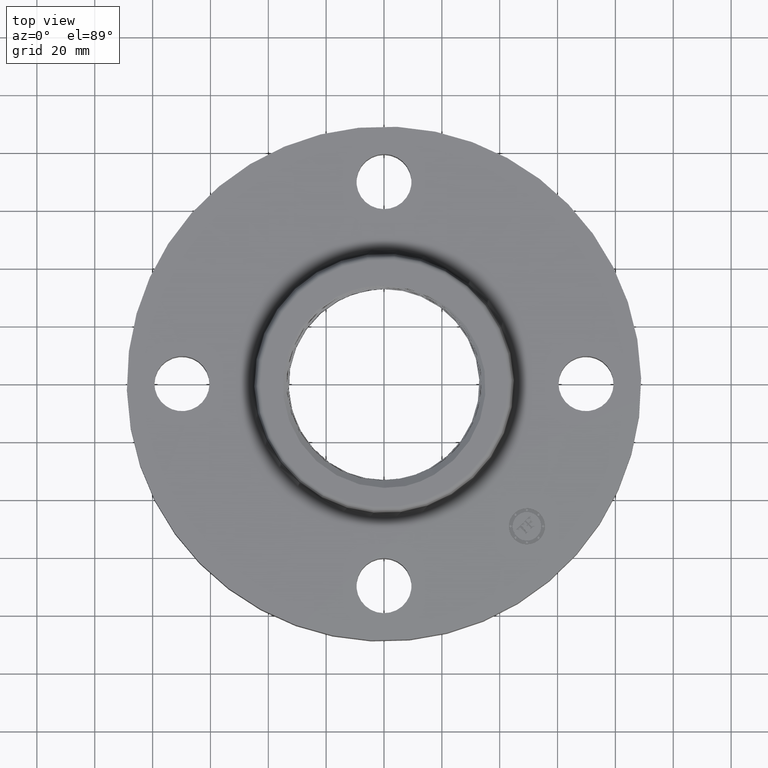
[diagram: clean part render]
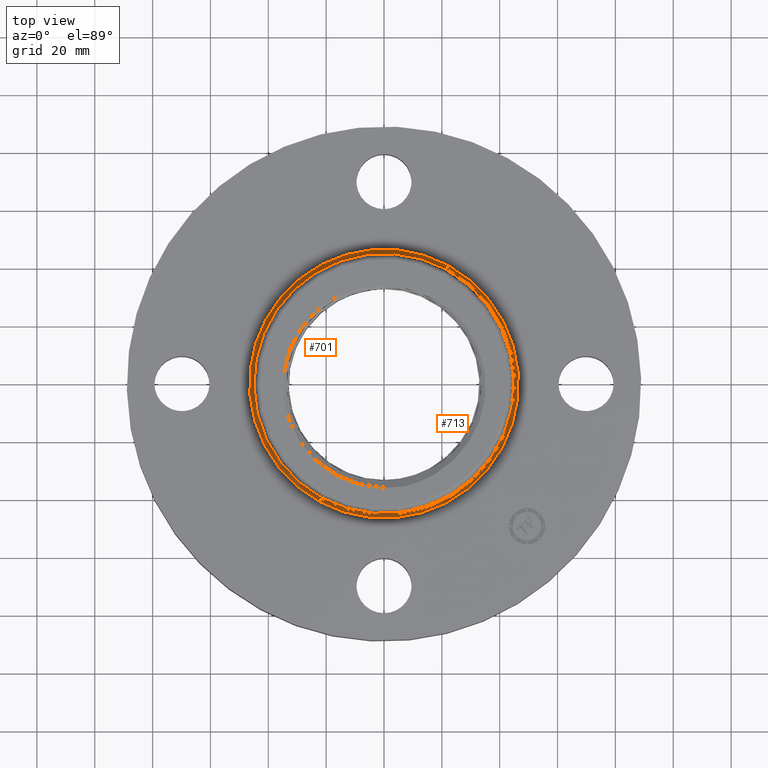
[diagram: same view with one multi-face feature highlighted, each face labeled with its STEP entity id]
A machine part, top view. The highlighted faces form ONE feature: a constant-radius fillet chain: 2 tangent blend faces with common blend radius 1.524 mm. The faces share edges in the B-rep.
Their STEP definitions:
[1] entity #701 (Torus):
#635=AXIS2_PLACEMENT_3D('Circle Axis2P3D',#633,#634,$) ;
#674=AXIS2_PLACEMENT_3D('Torus Axis2P3D',#671,#672,#673) ;
#678=AXIS2_PLACEMENT_3D('Circle Axis2P3D',#676,#677,$) ;
#687=AXIS2_PLACEMENT_3D('Circle Axis2P3D',#685,#686,$) ;
#692=AXIS2_PLACEMENT_3D('Circle Axis2P3D',#690,#691,$) ;
#633=CARTESIAN_POINT('Axis2P3D Location',(0.,0.,0.859581109343)) ;
#637=CARTESIAN_POINT('Vertex',(-0.849186087031,-1.55442470576,0.859581109343)) ;
#639=CARTESIAN_POINT('Vertex',(0.849186087031,1.55442470576,0.859581109343)) ;
#671=CARTESIAN_POINT('Axis2P3D Location',(0.,0.,0.870000000003)) ;
#676=CARTESIAN_POINT('Axis2P3D Location',(0.,0.,0.810000000003)) ;
#680=CARTESIAN_POINT('Vertex',(-0.877514606276,-1.60627971241,0.810000000003)) ;
#682=CARTESIAN_POINT('Vertex',(0.877514606276,1.60627971241,0.810000000003)) ;
#685=CARTESIAN_POINT('Axis2P3D Location',(-0.877514606276,-1.60627971241,0.870000000003)) ;
#690=CARTESIAN_POINT('Axis2P3D Location',(0.877514606276,1.60627971241,0.870000000003)) ;
#634=DIRECTION('Axis2P3D Direction',(0.,0.,-0.0393700787402)) ;
#672=DIRECTION('Axis2P3D Direction',(0.,0.,-0.0393700787402)) ;
#673=DIRECTION('Axis2P3D XDirection',(0.0188750212049,0.0345504945626,0.)) ;
#677=DIRECTION('Axis2P3D Direction',(0.,0.,-0.0393700787402)) ;
#686=DIRECTION('Axis2P3D Direction',(0.0345504945626,-0.0188750212049,0.)) ;
#691=DIRECTION('Axis2P3D Direction',(-0.0345504945626,0.0188750212049,0.)) ;
#696=ORIENTED_EDGE('',*,*,#684,.F.) ;
#697=ORIENTED_EDGE('',*,*,#689,.T.) ;
#698=ORIENTED_EDGE('',*,*,#641,.T.) ;
#699=ORIENTED_EDGE('',*,*,#694,.F.) ;
#701=ADVANCED_FACE('PartBody',(#700),#675,.F.) ;
#636=CIRCLE('generated circle',#635,1.7712575127) ;
#679=CIRCLE('generated circle',#678,1.83034597788) ;
#688=CIRCLE('generated circle',#687,0.0600000000002) ;
#693=CIRCLE('generated circle',#692,0.0600000000002) ;
#675=TOROIDAL_SURFACE('homeo Torus',#674,1.83034597788,0.0600000000002) ;
#641=EDGE_CURVE('',#638,#640,#636,.T.) ;
#684=EDGE_CURVE('',#681,#683,#679,.T.) ;
#689=EDGE_CURVE('',#681,#638,#688,.T.) ;
#694=EDGE_CURVE('',#683,#640,#693,.T.) ;
#695=EDGE_LOOP('',(#696,#697,#698,#699)) ;
#700=FACE_OUTER_BOUND('',#695,.T.) ;
#638=VERTEX_POINT('',#637) ;
#640=VERTEX_POINT('',#639) ;
#681=VERTEX_POINT('',#680) ;
#683=VERTEX_POINT('',#682) ;
[2] entity #713 (Torus):
#661=AXIS2_PLACEMENT_3D('Circle Axis2P3D',#659,#660,$) ;
#674=AXIS2_PLACEMENT_3D('Torus Axis2P3D',#671,#672,#673) ;
#687=AXIS2_PLACEMENT_3D('Circle Axis2P3D',#685,#686,$) ;
#692=AXIS2_PLACEMENT_3D('Circle Axis2P3D',#690,#691,$) ;
#704=AXIS2_PLACEMENT_3D('Circle Axis2P3D',#702,#703,$) ;
#637=CARTESIAN_POINT('Vertex',(-0.849186087031,-1.55442470576,0.859581109343)) ;
#639=CARTESIAN_POINT('Vertex',(0.849186087031,1.55442470576,0.859581109343)) ;
#659=CARTESIAN_POINT('Axis2P3D Location',(0.,0.,0.859581109343)) ;
#671=CARTESIAN_POINT('Axis2P3D Location',(0.,0.,0.870000000003)) ;
#680=CARTESIAN_POINT('Vertex',(-0.877514606276,-1.60627971241,0.810000000003)) ;
#682=CARTESIAN_POINT('Vertex',(0.877514606276,1.60627971241,0.810000000003)) ;
#685=CARTESIAN_POINT('Axis2P3D Location',(-0.877514606276,-1.60627971241,0.870000000003)) ;
#690=CARTESIAN_POINT('Axis2P3D Location',(0.877514606276,1.60627971241,0.870000000003)) ;
#702=CARTESIAN_POINT('Axis2P3D Location',(0.,0.,0.810000000003)) ;
#660=DIRECTION('Axis2P3D Direction',(0.,0.,-0.0393700787402)) ;
#672=DIRECTION('Axis2P3D Direction',(0.,0.,-0.0393700787402)) ;
#673=DIRECTION('Axis2P3D XDirection',(0.0188750212049,0.0345504945626,0.)) ;
#686=DIRECTION('Axis2P3D Direction',(0.0345504945626,-0.0188750212049,0.)) ;
#691=DIRECTION('Axis2P3D Direction',(-0.0345504945626,0.0188750212049,0.)) ;
#703=DIRECTION('Axis2P3D Direction',(0.,0.,-0.0393700787402)) ;
#708=ORIENTED_EDGE('',*,*,#706,.F.) ;
#709=ORIENTED_EDGE('',*,*,#694,.T.) ;
#710=ORIENTED_EDGE('',*,*,#663,.T.) ;
#711=ORIENTED_EDGE('',*,*,#689,.F.) ;
#713=ADVANCED_FACE('PartBody',(#712),#675,.F.) ;
#662=CIRCLE('generated circle',#661,1.7712575127) ;
#688=CIRCLE('generated circle',#687,0.0600000000002) ;
#693=CIRCLE('generated circle',#692,0.0600000000002) ;
#705=CIRCLE('generated circle',#704,1.83034597788) ;
#675=TOROIDAL_SURFACE('homeo Torus',#674,1.83034597788,0.0600000000002) ;
#663=EDGE_CURVE('',#640,#638,#662,.T.) ;
#689=EDGE_CURVE('',#681,#638,#688,.T.) ;
#694=EDGE_CURVE('',#683,#640,#693,.T.) ;
#706=EDGE_CURVE('',#683,#681,#705,.T.) ;
#707=EDGE_LOOP('',(#708,#709,#710,#711)) ;
#712=FACE_OUTER_BOUND('',#707,.T.) ;
#638=VERTEX_POINT('',#637) ;
#640=VERTEX_POINT('',#639) ;
#681=VERTEX_POINT('',#680) ;
#683=VERTEX_POINT('',#682) ;